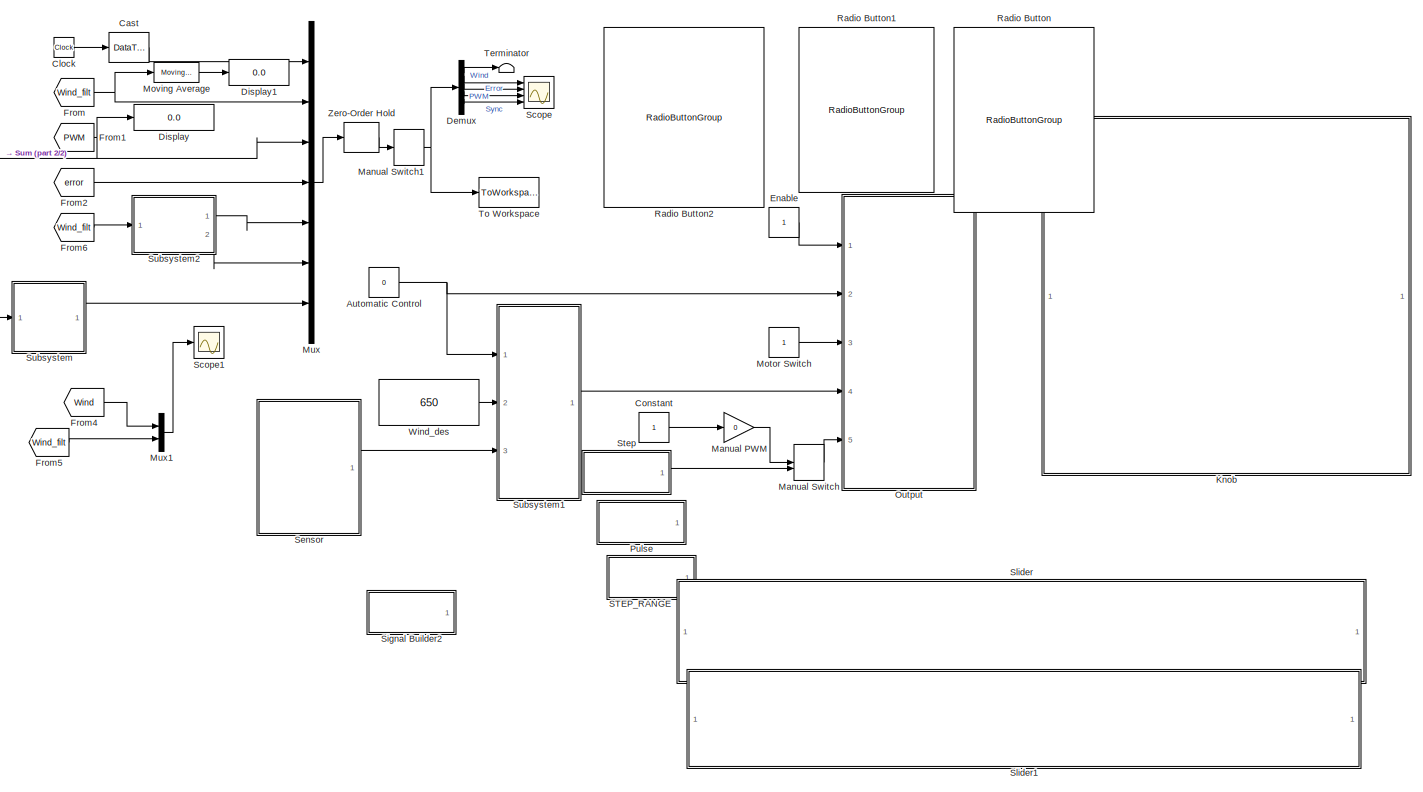
[diagram: root canvas - part 1/2, most of the canvas]
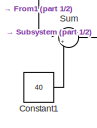
[diagram: root canvas - part 2/2, middle left region]
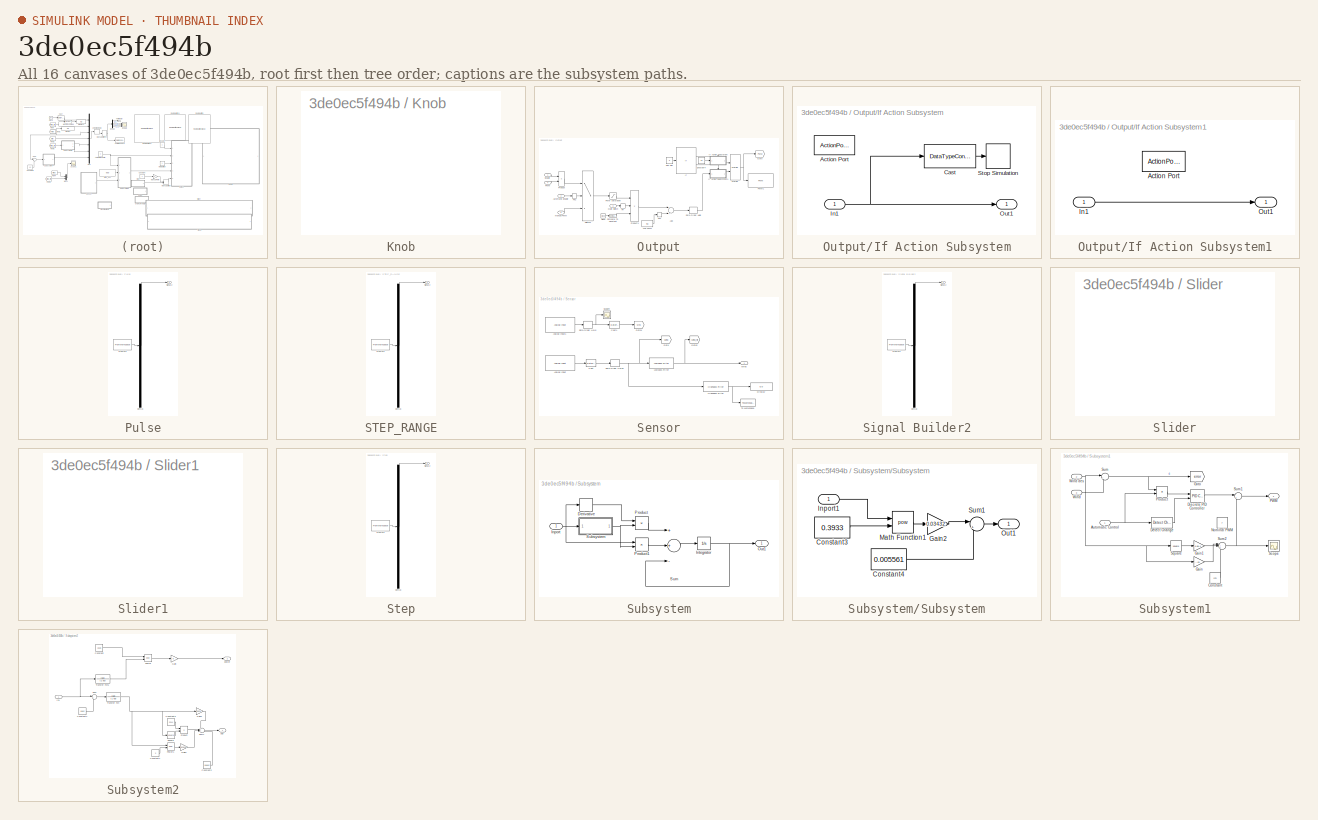
[diagram: thumbnail index - all 16 canvases of the model, root first then tree order]
MODEL slx_3de0ec5f494b
KIND model
CONFIG AbsTol = auto
CONFIG EnableMultiTasking = on
CONFIG FixedStep = 0.01
CONFIG InitFcn = set_param('step_test/Output/Run Sim','Value','1');\nset_param('step_test/Motor Switch','Value','0');\nset_param('step_test/Automatic Control','Value','0');\n%set_param('step_test/Manual PWM','Gain','0');
CONFIG MaxStep = auto
CONFIG MinStep = auto
CONFIG RelTol = 1e-3
CONFIG SampleTimeConstraint = Unconstrained
CONFIG Solver = FixedStepAuto
CONFIG SolverName = FixedStepAuto
CONFIG StartTime = 0.0
CONFIG StopTime = inf
BLOCK [Constant] Automatic Control
  SampleTime = 0.01
  Value = 0
BLOCK [DataTypeConversion] Cast
  OutDataTypeStr = double
  RndMeth = Floor
  SaturateOnIntegerOverflow = off
BLOCK [Clock] Clock
BLOCK [Constant] Constant
  SampleTime = 0.01
BLOCK [Constant] Constant1
  Value = 40
BLOCK [Demux] Demux
  DisplayOption = bar
  Outputs = 6
  Ports = [1, 6]
BLOCK [Display] Display
  Decimation = 1
  Ports = [1]
BLOCK [Display] Display1
  Decimation = 1
  Ports = [1]
BLOCK [Constant] Enable
  SampleTime = 0.01
BLOCK [From] From
  GotoTag = Wind_filt
  TagVisibility = global
BLOCK [From] From1
  GotoTag = PWM
  TagVisibility = global
BLOCK [From] From2
  GotoTag = error
  TagVisibility = global
BLOCK [From] From4
  GotoTag = Wind
  TagVisibility = global
BLOCK [From] From5
  GotoTag = Wind_filt
  TagVisibility = global
BLOCK [From] From6
  GotoTag = Wind_filt
  TagVisibility = global
BLOCK [SubSystem] Knob
  DialogController = hmiCreateDDGDialog
  IsWebBlock = on
  MaskHideContents = on
  Ports = []
  RequestExecContextInheritance = off
BLOCK [Gain] Manual PWM
  Gain = 0
  OutDataTypeStr = Inherit: Inherit via internal rule
  ParamDataTypeStr = Inherit: Inherit via internal rule
  SaturateOnIntegerOverflow = off
BLOCK [ManualSwitch] Manual Switch
BLOCK [ManualSwitch] Manual Switch1
BLOCK [Constant] Motor Switch
  SampleTime = 0.01
BLOCK [Reference] Moving Average  REF=dspstat3/Moving
Average
  Ports = [1, 1]
  SourceBlock = dspstat3/Moving\nAverage
  SourceProductBaseCode = DS
  SourceProductName = DSP System Toolbox
  SourceType = dsp.simulink.MovingAverage
BLOCK [Mux] Mux
  DisplayOption = bar
  Inputs = 7
  Ports = [7, 1]
BLOCK [Mux] Mux1
  DisplayOption = bar
  Inputs = 2
  Ports = [2, 1]
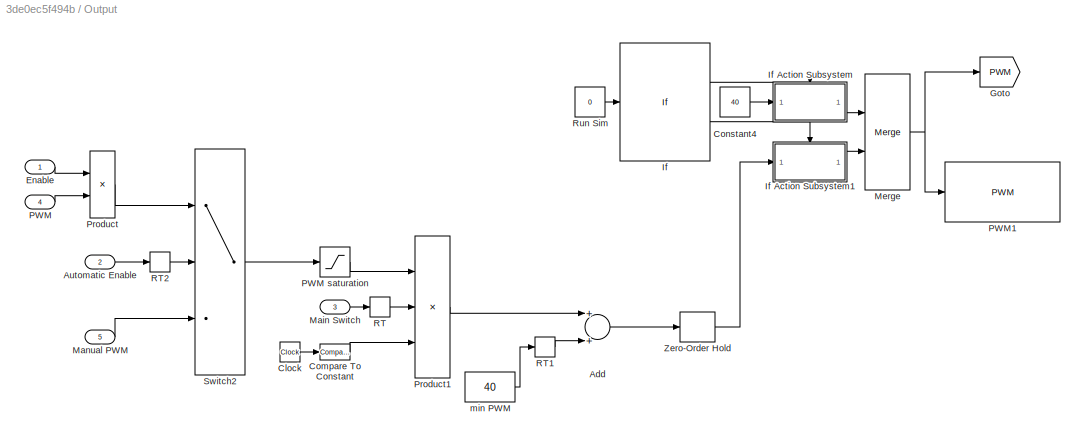
BLOCK [SubSystem] Output
  Ports = [5]
  RequestExecContextInheritance = off
BLOCK [Sum] Output/Add
  InputSameDT = off
  OutDataTypeStr = Inherit: Inherit via internal rule
  Ports = [2, 1]
  SaturateOnIntegerOverflow = off
BLOCK [Inport] Output/Automatic Enable
  IconDisplay = Port number
  Port = 2
BLOCK [Clock] Output/Clock
  Decimation = 2
BLOCK [Reference] Output/Compare To Constant  REF=simulink/Logic and Bit
Operations/Compare
To Constant
  Ports = [1, 1]
  SourceBlock = simulink/Logic and Bit\nOperations/Compare\nTo Constant
  SourceProductBaseCode = SL
  SourceProductName = Simulink
  SourceType = Compare To Constant
BLOCK [Constant] Output/Constant4
  SampleTime = 0.01
  Value = 40
BLOCK [Inport] Output/Enable
  IconDisplay = Port number
BLOCK [Goto] Output/Goto
  GotoTag = PWM
  TagVisibility = global
BLOCK [If] Output/If
  IfExpression = u1 ~= 1
  Ports = [1, 2]
BLOCK [SubSystem] Output/If Action Subsystem
  Ports = [1, 1, 0, 0, 0, 0, 0, 1]
  RequestExecContextInheritance = off
  TreatAsAtomicUnit = on
BLOCK [ActionPort] Output/If Action Subsystem/Action Port
  ActionType = then
BLOCK [DataTypeConversion] Output/If Action Subsystem/Cast
  OutDataTypeStr = boolean
  RndMeth = Floor
  SaturateOnIntegerOverflow = off
BLOCK [Inport] Output/If Action Subsystem/In1
  IconDisplay = Port number
BLOCK [Outport] Output/If Action Subsystem/Out1
  IconDisplay = Port number
BLOCK [Stop] Output/If Action Subsystem/Stop Simulation
BLOCK [SubSystem] Output/If Action Subsystem1
  Ports = [1, 1, 0, 0, 0, 0, 0, 1]
  RequestExecContextInheritance = off
  TreatAsAtomicUnit = on
BLOCK [ActionPort] Output/If Action Subsystem1/Action Port
  ActionType = else
BLOCK [Inport] Output/If Action Subsystem1/In1
  IconDisplay = Port number
BLOCK [Outport] Output/If Action Subsystem1/Out1
  IconDisplay = Port number
BLOCK [Inport] Output/Main Switch
  IconDisplay = Port number
  Port = 3
BLOCK [Inport] Output/Manual PWM
  IconDisplay = Port number
  Port = 5
BLOCK [Merge] Output/Merge
  Ports = [2, 1]
BLOCK [Inport] Output/PWM
  IconDisplay = Port number
  Port = 4
BLOCK [Saturate] Output/PWM saturation
  InputPortMap = u0
  LowerLimit = 0
  Ports = [1, 1]
  UpperLimit = 40
BLOCK [Reference] Output/PWM1  REF=arduinolib/PWM
  Ports = [1]
  SourceBlock = arduinolib/PWM
  SourceProductBaseCode = ARDUINO
  SourceProductName = Simulink Support Package for Arduino Hardware
  SourceType = Arduino PWM
BLOCK [Product] Output/Product
  InputSameDT = off
  OutDataTypeStr = Inherit: Inherit via internal rule
  Ports = [2, 1]
  RndMeth = Floor
  SaturateOnIntegerOverflow = off
BLOCK [Product] Output/Product1
  InputSameDT = off
  Inputs = 3
  OutDataTypeStr = Inherit: Inherit via internal rule
  Ports = [3, 1]
  RndMeth = Floor
  SaturateOnIntegerOverflow = off
BLOCK [RateTransition] Output/RT
  OutPortSampleTime = 0.01
BLOCK [RateTransition] Output/RT1
  OutPortSampleTime = 0.01
BLOCK [RateTransition] Output/RT2
  OutPortSampleTime = 0.01
BLOCK [Constant] Output/Run Sim
  SampleTime = 0.01
  Value = 0
BLOCK [Switch] Output/Switch2
  Criteria = u2 > Threshold
  InputSameDT = off
  SaturateOnIntegerOverflow = off
BLOCK [ZeroOrderHold] Output/Zero-Order Hold
  SampleTime = 0.01
BLOCK [Constant] Output/min PWM
  SampleTime = 0.01
  Value = 40
BLOCK [SubSystem] Pulse
  ClipboardFcn = sigbuilder_block('clipboard');
  CloseFcn = sigbuilder_block('close');
  ContinueFcn = sigbuilder_block('continue');
  CopyFcn = sigbuilder_block('copy');
  DeleteFcn = sigbuilder_block('delete');
  LoadFcn = sigbuilder_block('load');
  MaskHideContents = on
  ModelCloseFcn = sigbuilder_block('modelClose');
  NameChangeFcn = sigbuilder_block('namechange');
  OpenFcn = sigbuilder_block('open',[48.75 0 1391.25 750.75 ]);
  PauseFcn = sigbuilder_block('pause');
  Ports = [0, 1]
  PreSaveFcn = sigbuilder_block('preSave');
  RequestExecContextInheritance = off
  StartFcn = sigbuilder_block('start');
  StopFcn = sigbuilder_block('stop');
  Tag = STV Subsys
BLOCK [Demux] Pulse/Demux
  Outputs = 1
  Ports = [1, 1]
  Tag = STV Demux
BLOCK [FromWorkspace] Pulse/FromWs
  SampleTime = 0
  Tag = STV FromWs
  VariableName = tuvar
  ZeroCross = on
BLOCK [Outport] Pulse/Signal 2
  IconDisplay = Port number
  Tag = STV Outport
BLOCK [RadioButtonGroup] Radio Button
  ButtonGroupName = SIM STATUS
  SelectedLabel = OFF
  WebBlockId = 124
BLOCK [RadioButtonGroup] Radio Button1
  ButtonGroupName = SIM STATUS
  SelectedLabel = OFF
  WebBlockId = 141
BLOCK [RadioButtonGroup] Radio Button2
  ButtonGroupName = SIM STATUS
  SelectedLabel = ON
  WebBlockId = 144
BLOCK [SubSystem] STEP_RANGE
  ClipboardFcn = sigbuilder_block('clipboard');
  CloseFcn = sigbuilder_block('close');
  ContinueFcn = sigbuilder_block('continue');
  CopyFcn = sigbuilder_block('copy');
  DeleteFcn = sigbuilder_block('delete');
  LoadFcn = sigbuilder_block('load');
  MaskHideContents = on
  ModelCloseFcn = sigbuilder_block('modelClose');
  NameChangeFcn = sigbuilder_block('namechange');
  OpenFcn = sigbuilder_block('open',[48.75 0 1391.25 711 ]);
  PauseFcn = sigbuilder_block('pause');
  Ports = [0, 1]
  PreSaveFcn = sigbuilder_block('preSave');
  RequestExecContextInheritance = off
  StartFcn = sigbuilder_block('start');
  StopFcn = sigbuilder_block('stop');
  Tag = STV Subsys
BLOCK [Demux] STEP_RANGE/Demux
  Outputs = 1
  Ports = [1, 1]
  Tag = STV Demux
BLOCK [FromWorkspace] STEP_RANGE/FromWs
  SampleTime = 0
  Tag = STV FromWs
  VariableName = tuvar
  ZeroCross = on
BLOCK [Outport] STEP_RANGE/Signal 2
  IconDisplay = Port number
  Tag = STV Outport
BLOCK [Scope] Scope
  Floating = off
  NumInputPorts = 4
  Ports = [4]
  ScopeSpecificationString = Simulink.scopes.TimeScopeBlockCfg('CurrentConfiguration', extmgr.ConfigurationSet(extmgr.Configuration('Core','General UI',true),extmgr.Configuration('Core','Source UI',true),extmgr.Configuration('Sources','WiredSimulink',true,'DataLoggingVariableName','ScopeData1'),extmgr.Configuration('Visuals','Time Domain',true,'SerializedDisplays',{struct('MinYLimReal','400','MaxYLimReal','750','YLabelReal','...<+3401ch>
BLOCK [Scope] Scope1
  Floating = off
  NumInputPorts = 1
  Ports = [1]
  ScopeSpecificationString = Simulink.scopes.TimeScopeBlockCfg('CurrentConfiguration', extmgr.ConfigurationSet(extmgr.Configuration('Core','General UI',true),extmgr.Configuration('Core','Source UI',true),extmgr.Configuration('Sources','WiredSimulink',true,'DataLoggingVariableName','ScopeData1'),extmgr.Configuration('Visuals','Time Domain',true,'SerializedDisplays',{struct('MinYLimReal','590.625','MaxYLimReal','774.375','YLabe...<+1444ch>
BLOCK [SubSystem] Sensor
  Ports = [0, 1]
  RequestExecContextInheritance = off
BLOCK [Reference] Sensor/Analog Input  REF=arduinolib/Analog Input
  Ports = [0, 1]
  SourceBlock = arduinolib/Analog Input
  SourceProductBaseCode = ARDUINO
  SourceProductName = Simulink Support Package for Arduino Hardware
  SourceType = Arduino Analog Input
BLOCK [Reference] Sensor/Analog Input1  REF=arduinolib/Analog Input
  Ports = [0, 1]
  SourceBlock = arduinolib/Analog Input
  SourceProductBaseCode = ARDUINO
  SourceProductName = Simulink Support Package for Arduino Hardware
  SourceType = Arduino Analog Input
BLOCK [DataTypeConversion] Sensor/Cast
  OutDataTypeStr = double
  RndMeth = Floor
  SaturateOnIntegerOverflow = off
BLOCK [DataTypeConversion] Sensor/Cast1
  OutDataTypeStr = double
  RndMeth = Floor
  SaturateOnIntegerOverflow = off
BLOCK [Display] Sensor/Display
  Commented = on
  Decimation = 1
  Ports = [1]
BLOCK [Goto] Sensor/Goto
  GotoTag = Wind
  TagVisibility = global
BLOCK [Goto] Sensor/Goto1
  GotoTag = sync
  TagVisibility = global
BLOCK [Goto] Sensor/Goto2
  GotoTag = Wind_filt
  TagVisibility = global
BLOCK [Reference] Sensor/Highpass Filter  REF=dspfdesign/Highpass Filter
  Commented = on
  Ports = [1, 1]
  SourceBlock = dspfdesign/Highpass Filter
  SourceProductBaseCode = DS
  SourceProductName = DSP System Toolbox
  SourceType = dsp.HighpassFilter
BLOCK [Reference] Sensor/Lowpass Filter  REF=dspfdesign/Lowpass Filter
  Ports = [1, 1]
  SourceBlock = dspfdesign/Lowpass Filter
  SourceProductBaseCode = DS
  SourceProductName = DSP System Toolbox
  SourceType = dsp.LowpassFilter
BLOCK [Scope] Sensor/Scope4
  Floating = off
  NumInputPorts = 1
  Ports = [1]
  ScopeSpecificationString = Simulink.scopes.TimeScopeBlockCfg('CurrentConfiguration', extmgr.ConfigurationSet(extmgr.Configuration('Core','General UI',true),extmgr.Configuration('Core','Source UI',true),extmgr.Configuration('Sources','WiredSimulink',true,'DataLoggingVariableName','ScopeData4','DataLogging',true),extmgr.Configuration('Visuals','Time Domain',true,'SerializedDisplays',{struct('MinYLimReal','480.00000','MaxYLimR...<+1526ch>
BLOCK [ToWorkspace] Sensor/To Workspace
  Commented = on
  FixptAsFi = on
  MaxDataPoints = inf
  Ports = [1]
  SampleTime = 0.01
  Save2DSignal = 3-D array (concatenate along third dimension)
  VariableName = filtered_Wind
BLOCK [Outport] Sensor/Wind
  IconDisplay = Port number
BLOCK [ZeroOrderHold] Sensor/Zero-Order Hold
  SampleTime = 0.01
BLOCK [ZeroOrderHold] Sensor/Zero-Order Hold1
  SampleTime = 0.01
BLOCK [SubSystem] Signal Builder2
  ClipboardFcn = sigbuilder_block('clipboard');
  CloseFcn = sigbuilder_block('close');
  ContinueFcn = sigbuilder_block('continue');
  CopyFcn = sigbuilder_block('copy');
  DeleteFcn = sigbuilder_block('delete');
  LoadFcn = sigbuilder_block('load');
  MaskHideContents = on
  ModelCloseFcn = sigbuilder_block('modelClose');
  NameChangeFcn = sigbuilder_block('namechange');
  OpenFcn = sigbuilder_block('open',[48.75 0 1391.25 729.75 ]);
  PauseFcn = sigbuilder_block('pause');
  Ports = [0, 1]
  PreSaveFcn = sigbuilder_block('preSave');
  RequestExecContextInheritance = off
  StartFcn = sigbuilder_block('start');
  StopFcn = sigbuilder_block('stop');
  Tag = STV Subsys
BLOCK [Demux] Signal Builder2/Demux
  Outputs = 1
  Ports = [1, 1]
  Tag = STV Demux
BLOCK [FromWorkspace] Signal Builder2/FromWs
  SampleTime = 0
  Tag = STV FromWs
  VariableName = tuvar
  ZeroCross = on
BLOCK [Outport] Signal Builder2/Signal 2
  IconDisplay = Port number
  Tag = STV Outport
BLOCK [SubSystem] Slider
  DialogController = hmiCreateDDGDialog
  IsWebBlock = on
  MaskHideContents = on
  Ports = []
  RequestExecContextInheritance = off
BLOCK [SubSystem] Slider1
  DialogController = hmiCreateDDGDialog
  IsWebBlock = on
  MaskHideContents = on
  Ports = []
  RequestExecContextInheritance = off
BLOCK [SubSystem] Step
  ClipboardFcn = sigbuilder_block('clipboard');
  CloseFcn = sigbuilder_block('close');
  ContinueFcn = sigbuilder_block('continue');
  CopyFcn = sigbuilder_block('copy');
  DeleteFcn = sigbuilder_block('delete');
  LoadFcn = sigbuilder_block('load');
  MaskHideContents = on
  ModelCloseFcn = sigbuilder_block('modelClose');
  NameChangeFcn = sigbuilder_block('namechange');
  OpenFcn = sigbuilder_block('open',[48.75 0 1391.25 750.75 ]);
  PauseFcn = sigbuilder_block('pause');
  Ports = [0, 1]
  PreSaveFcn = sigbuilder_block('preSave');
  RequestExecContextInheritance = off
  StartFcn = sigbuilder_block('start');
  StopFcn = sigbuilder_block('stop');
  Tag = STV Subsys
BLOCK [Demux] Step/Demux
  Outputs = 1
  Ports = [1, 1]
  Tag = STV Demux
BLOCK [FromWorkspace] Step/FromWs
  SampleTime = 0
  Tag = STV FromWs
  VariableName = tuvar
  ZeroCross = on
BLOCK [Outport] Step/Signal 2
  IconDisplay = Port number
  Tag = STV Outport
BLOCK [SubSystem] Subsystem
  Ports = [1, 1]
  RequestExecContextInheritance = off
BLOCK [Derivative] Subsystem/Derivative
BLOCK [Inport] Subsystem/Inport
  IconDisplay = Port number
BLOCK [Integrator] Subsystem/Integrator
  Ports = [1, 1]
BLOCK [Outport] Subsystem/Out1
  IconDisplay = Port number
BLOCK [Product] Subsystem/Product
  InputSameDT = off
  OutDataTypeStr = Inherit: Inherit via internal rule
  Ports = [2, 1]
  RndMeth = Floor
  SaturateOnIntegerOverflow = off
BLOCK [Product] Subsystem/Product1
  InputSameDT = off
  OutDataTypeStr = Inherit: Inherit via internal rule
  Ports = [2, 1]
  RndMeth = Floor
  SaturateOnIntegerOverflow = off
BLOCK [SubSystem] Subsystem/Subsystem
  Ports = [1, 1]
  RequestExecContextInheritance = off
BLOCK [Constant] Subsystem/Subsystem/Constant3
  Value = 0.3933
BLOCK [Constant] Subsystem/Subsystem/Constant4
  Value = 0.005561
BLOCK [Gain] Subsystem/Subsystem/Gain2
  Gain = 0.03432
  OutDataTypeStr = Inherit: Inherit via internal rule
  ParamDataTypeStr = Inherit: Inherit via internal rule
  SaturateOnIntegerOverflow = off
BLOCK [Inport] Subsystem/Subsystem/Inport1
  IconDisplay = Port number
BLOCK [Math] Subsystem/Subsystem/Math Function1
  Operator = pow
  Ports = [2, 1]
BLOCK [Outport] Subsystem/Subsystem/Out1
  IconDisplay = Port number
BLOCK [Sum] Subsystem/Subsystem/Sum1
  IconShape = round
  InputSameDT = off
  Inputs = |++
  OutDataTypeStr = Inherit: Inherit via internal rule
  Ports = [2, 1]
  SaturateOnIntegerOverflow = off
BLOCK [Sum] Subsystem/Sum
  InputSameDT = off
  Inputs = ++-
  OutDataTypeStr = Inherit: Inherit via internal rule
  Ports = [3, 1]
  SaturateOnIntegerOverflow = off
BLOCK [SubSystem] Subsystem1
  Ports = [3, 1]
  RequestExecContextInheritance = off
BLOCK [Inport] Subsystem1/Automatic Control
  IconDisplay = Port number
BLOCK [Constant] Subsystem1/Constant
  Value = 170
BLOCK [Reference] Subsystem1/Detect Change  REF=simulink/Logic and Bit
Operations/Detect
Change
  Ports = [1, 1]
  SourceBlock = simulink/Logic and Bit\nOperations/Detect\nChange
  SourceProductBaseCode = SL
  SourceProductName = Simulink
  SourceType = Detect Change
BLOCK [Reference] Subsystem1/Discrete PID Controller  REF=simulink/Continuous/PID Controller
  Ports = [2, 1]
  SourceBlock = simulink/Continuous/PID Controller
  SourceProductBaseCode = SL
  SourceProductName = Simulink
  SourceType = PID 1dof
BLOCK [Gain] Subsystem1/Gain
  Gain = -.61
  OutDataTypeStr = Inherit: Inherit via internal rule
  ParamDataTypeStr = Inherit: Inherit via internal rule
  SaturateOnIntegerOverflow = off
BLOCK [Gain] Subsystem1/Gain1
  Gain = 5.6e-4
  OutDataTypeStr = Inherit: Inherit via internal rule
  ParamDataTypeStr = Inherit: Inherit via internal rule
  SaturateOnIntegerOverflow = off
BLOCK [Goto] Subsystem1/Goto
  GotoTag = error
  TagVisibility = global
BLOCK [Constant] Subsystem1/Nominal PWM
  Commented = on
  SampleTime = 0.01
  Value = 7
BLOCK [Outport] Subsystem1/PWM
  IconDisplay = Port number
BLOCK [Product] Subsystem1/Product
  InputSameDT = off
  OutDataTypeStr = Inherit: Inherit via internal rule
  Ports = [2, 1]
  RndMeth = Floor
  SaturateOnIntegerOverflow = off
BLOCK [Scope] Subsystem1/Scope
  Floating = off
  NumInputPorts = 1
  Ports = [1]
  ScopeSpecificationString = Simulink.scopes.TimeScopeBlockCfg('CurrentConfiguration', extmgr.ConfigurationSet(extmgr.Configuration('Core','General UI',true),extmgr.Configuration('Core','Source UI',true),extmgr.Configuration('Sources','WiredSimulink',true,'DataLoggingVariableName','ScopeData1'),extmgr.Configuration('Visuals','Time Domain',true,'SerializedDisplays',{struct('MinYLimReal','10.06778','MaxYLimReal','10.39002','YLa...<+1398ch>
BLOCK [Math] Subsystem1/Square
  Operator = square
  Ports = [1, 1]
BLOCK [Sum] Subsystem1/Sum
  IconShape = round
  InputSameDT = off
  Inputs = |+-
  OutDataTypeStr = Inherit: Inherit via internal rule
  Ports = [2, 1]
  SaturateOnIntegerOverflow = off
BLOCK [Sum] Subsystem1/Sum1
  IconShape = round
  InputSameDT = off
  Inputs = |++
  OutDataTypeStr = Inherit: Inherit via internal rule
  Ports = [2, 1]
  SaturateOnIntegerOverflow = off
BLOCK [Sum] Subsystem1/Sum2
  IconShape = round
  InputSameDT = off
  Inputs = |+++
  OutDataTypeStr = Inherit: Inherit via internal rule
  Ports = [3, 1]
  SaturateOnIntegerOverflow = off
BLOCK [Inport] Subsystem1/Wind
  IconDisplay = Port number
  Port = 3
BLOCK [Inport] Subsystem1/Wind des
  IconDisplay = Port number
  Port = 2
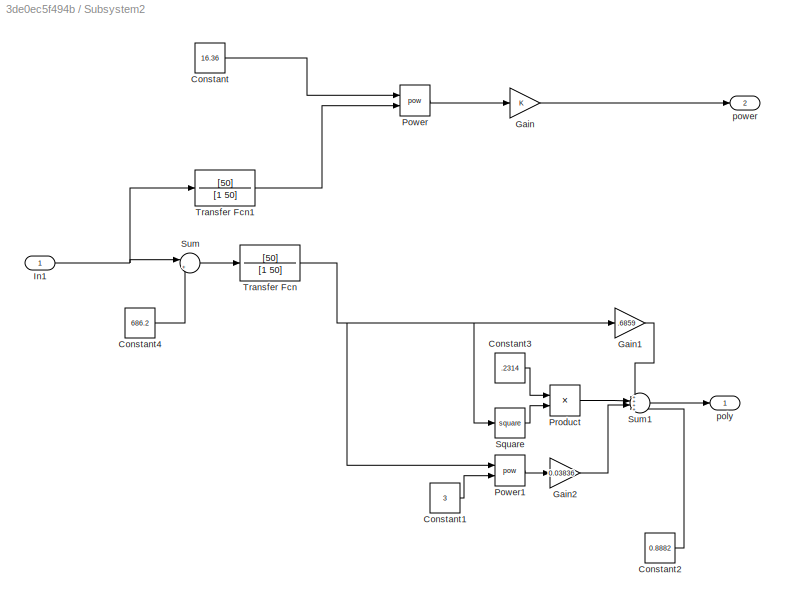
BLOCK [SubSystem] Subsystem2
  Ports = [1, 2]
  RequestExecContextInheritance = off
BLOCK [Constant] Subsystem2/Constant
  Value = 16.36
BLOCK [Constant] Subsystem2/Constant1
  Value = 3
BLOCK [Constant] Subsystem2/Constant2
  Value = 0.8882
BLOCK [Constant] Subsystem2/Constant3
  Value = .2314
BLOCK [Constant] Subsystem2/Constant4
  Value = 686.2
BLOCK [Gain] Subsystem2/Gain
  OutDataTypeStr = Inherit: Inherit via internal rule
  ParamDataTypeStr = Inherit: Inherit via internal rule
  SaturateOnIntegerOverflow = off
BLOCK [Gain] Subsystem2/Gain1
  Gain = .6859
  OutDataTypeStr = Inherit: Inherit via internal rule
  ParamDataTypeStr = Inherit: Inherit via internal rule
  SaturateOnIntegerOverflow = off
BLOCK [Gain] Subsystem2/Gain2
  Gain = 0.03836
  OutDataTypeStr = Inherit: Inherit via internal rule
  ParamDataTypeStr = Inherit: Inherit via internal rule
  SaturateOnIntegerOverflow = off
BLOCK [Inport] Subsystem2/In1
  IconDisplay = Port number
BLOCK [Math] Subsystem2/Power
  Operator = pow
  Ports = [2, 1]
BLOCK [Math] Subsystem2/Power1
  Operator = pow
  Ports = [2, 1]
BLOCK [Product] Subsystem2/Product
  InputSameDT = off
  OutDataTypeStr = Inherit: Inherit via internal rule
  Ports = [2, 1]
  RndMeth = Floor
  SaturateOnIntegerOverflow = off
BLOCK [Math] Subsystem2/Square
  Operator = square
  Ports = [1, 1]
BLOCK [Sum] Subsystem2/Sum
  IconShape = round
  InputSameDT = off
  Inputs = |+-
  OutDataTypeStr = Inherit: Inherit via internal rule
  Ports = [2, 1]
  SaturateOnIntegerOverflow = off
BLOCK [Sum] Subsystem2/Sum1
  IconShape = round
  InputSameDT = off
  Inputs = ++++
  OutDataTypeStr = Inherit: Inherit via internal rule
  Ports = [4, 1]
  SaturateOnIntegerOverflow = off
BLOCK [TransferFcn] Subsystem2/Transfer Fcn
  Denominator = [1 50]
  Numerator = [50]
BLOCK [TransferFcn] Subsystem2/Transfer Fcn1
  Denominator = [1 50]
  Numerator = [50]
BLOCK [Outport] Subsystem2/poly
  IconDisplay = Port number
BLOCK [Outport] Subsystem2/power 
  IconDisplay = Port number
  Port = 2
BLOCK [Sum] Sum
  IconShape = round
  InputSameDT = off
  Inputs = |+-
  OutDataTypeStr = Inherit: Inherit via internal rule
  Ports = [2, 1]
  SaturateOnIntegerOverflow = off
BLOCK [Terminator] Terminator
BLOCK [ToWorkspace] To Workspace
  FixptAsFi = on
  MaxDataPoints = inf
  Ports = [1]
  SampleTime = -1
  Save2DSignal = 2-D array (concatenate along first dimension)
  VariableName = Data
BLOCK [Constant] Wind_des
  SampleTime = 0.01
  Value = 650
BLOCK [ZeroOrderHold] Zero-Order Hold
  SampleTime = 0.01
NET Automatic Control:1 -> Output:2, Subsystem1:1
LINE Cast:1 -> Mux:1
LINE Clock:1 -> Cast:1
LINE Constant1:1 -> Sum:2
LINE Constant:1 -> Manual PWM:1
LINE Demux:1 -> Terminator:1
LINE Demux:2 -> Scope:1
LINE Demux:3 -> Scope:2
LINE Demux:4 -> Scope:3
LINE Demux:5 -> Scope:4
LINE Enable:1 -> Output:1
NET From1:1 -> Display:1, Mux:3, Sum:1
LINE From2:1 -> Mux:4
LINE From4:1 -> Mux1:1
LINE From5:1 -> Mux1:2
LINE From6:1 -> Subsystem2:1
NET From:1 -> Moving Average:1, Mux:2
LINE Manual PWM:1 -> Manual Switch:1
NET Manual Switch1:1 -> Demux:1, To Workspace:1
LINE Manual Switch:1 -> Output:5
LINE Motor Switch:1 -> Output:3
LINE Moving Average:1 -> Display1:1
LINE Mux1:1 -> Scope1:1
LINE Mux:1 -> Zero-Order Hold:1
LINE Output/Add:1 -> Output/Zero-Order Hold:1
LINE Output/Automatic Enable:1 -> Output/RT2:1
LINE Output/Clock:1 -> Output/Compare To Constant:1
LINE Output/Compare To Constant:1 -> Output/Product1:3
LINE Output/Constant4:1 -> Output/If Action Subsystem:1
LINE Output/Enable:1 -> Output/Product:1
LINE Output/If Action Subsystem/Cast:1 -> Output/If Action Subsystem/Stop Simulation:1
NET Output/If Action Subsystem/In1:1 -> Output/If Action Subsystem/Cast:1, Output/If Action Subsystem/Out1:1
LINE Output/If Action Subsystem1/In1:1 -> Output/If Action Subsystem1/Out1:1
LINE Output/If Action Subsystem1:1 -> Output/Merge:2
LINE Output/If Action Subsystem:1 -> Output/Merge:1
LINE Output/If:1 -> Output/If Action Subsystem:ifaction
LINE Output/If:2 -> Output/If Action Subsystem1:ifaction
LINE Output/Main Switch:1 -> Output/RT:1
LINE Output/Manual PWM:1 -> Output/Switch2:3
NET Output/Merge:1 -> Output/Goto:1, Output/PWM1:1
LINE Output/PWM saturation:1 -> Output/Product1:1
LINE Output/PWM:1 -> Output/Product:2
LINE Output/Product1:1 -> Output/Add:1
LINE Output/Product:1 -> Output/Switch2:1
LINE Output/RT1:1 -> Output/Add:2
LINE Output/RT2:1 -> Output/Switch2:2
LINE Output/RT:1 -> Output/Product1:2
LINE Output/Run Sim:1 -> Output/If:1
LINE Output/Switch2:1 -> Output/PWM saturation:1
LINE Output/Zero-Order Hold:1 -> Output/If Action Subsystem1:1
LINE Output/min PWM:1 -> Output/RT1:1
LINE Sensor/Analog Input1:1 -> Sensor/Zero-Order Hold:1
LINE Sensor/Analog Input:1 -> Sensor/Cast:1
LINE Sensor/Cast1:1 -> Sensor/Goto1:1
LINE Sensor/Cast:1 -> Sensor/Zero-Order Hold1:1
NET Sensor/Highpass Filter:1 -> Sensor/Display:1, Sensor/To Workspace:1
NET Sensor/Lowpass Filter:1 -> Sensor/Goto2:1, Sensor/Wind:1
NET Sensor/Zero-Order Hold1:1 -> Sensor/Goto:1, Sensor/Highpass Filter:1, Sensor/Lowpass Filter:1
NET Sensor/Zero-Order Hold:1 -> Sensor/Cast1:1, Sensor/Scope4:1
LINE Sensor:1 -> Subsystem1:3
LINE Step:1 -> Manual Switch:2
LINE Subsystem/Derivative:1 -> Subsystem/Product:1
NET Subsystem/Inport:1 -> Subsystem/Derivative:1, Subsystem/Product1:1, Subsystem/Subsystem:1
NET Subsystem/Integrator:1 -> Subsystem/Out1:1, Subsystem/Sum:3
LINE Subsystem/Product1:1 -> Subsystem/Sum:2
LINE Subsystem/Product:1 -> Subsystem/Sum:1
LINE Subsystem/Subsystem/Constant3:1 -> Subsystem/Subsystem/Math Function1:2
LINE Subsystem/Subsystem/Constant4:1 -> Subsystem/Subsystem/Sum1:2
LINE Subsystem/Subsystem/Gain2:1 -> Subsystem/Subsystem/Sum1:1
LINE Subsystem/Subsystem/Inport1:1 -> Subsystem/Subsystem/Math Function1:1
LINE Subsystem/Subsystem/Math Function1:1 -> Subsystem/Subsystem/Gain2:1
LINE Subsystem/Subsystem/Sum1:1 -> Subsystem/Subsystem/Out1:1
NET Subsystem/Subsystem:1 -> Subsystem/Product1:2, Subsystem/Product:2
LINE Subsystem/Sum:1 -> Subsystem/Integrator:1
NET Subsystem1/Automatic Control:1 -> Subsystem1/Detect Change:1, Subsystem1/Product:2
LINE Subsystem1/Constant:1 -> Subsystem1/Sum2:3
LINE Subsystem1/Detect Change:1 -> Subsystem1/Discrete PID Controller:2
LINE Subsystem1/Discrete PID Controller:1 -> Subsystem1/Sum1:1
LINE Subsystem1/Gain1:1 -> Subsystem1/Sum2:1
LINE Subsystem1/Gain:1 -> Subsystem1/Sum2:2
LINE Subsystem1/Product:1 -> Subsystem1/Discrete PID Controller:1
LINE Subsystem1/Square:1 -> Subsystem1/Gain1:1
LINE Subsystem1/Sum1:1 -> Subsystem1/PWM:1
NET Subsystem1/Sum2:1 -> Subsystem1/Scope:1, Subsystem1/Sum1:2
NET Subsystem1/Sum:1 -> Subsystem1/Goto:1, Subsystem1/Product:1
NET Subsystem1/Wind des:1 -> Subsystem1/Gain:1, Subsystem1/Square:1, Subsystem1/Sum:1
LINE Subsystem1/Wind:1 -> Subsystem1/Sum:2
LINE Subsystem1:1 -> Output:4
LINE Subsystem2/Constant1:1 -> Subsystem2/Power1:2
LINE Subsystem2/Constant2:1 -> Subsystem2/Sum1:4
LINE Subsystem2/Constant3:1 -> Subsystem2/Product:1
LINE Subsystem2/Constant4:1 -> Subsystem2/Sum:2
LINE Subsystem2/Constant:1 -> Subsystem2/Power:1
LINE Subsystem2/Gain1:1 -> Subsystem2/Sum1:1
LINE Subsystem2/Gain2:1 -> Subsystem2/Sum1:3
LINE Subsystem2/Gain:1 -> Subsystem2/power :1
NET Subsystem2/In1:1 -> Subsystem2/Sum:1, Subsystem2/Transfer Fcn1:1
LINE Subsystem2/Power1:1 -> Subsystem2/Gain2:1
LINE Subsystem2/Power:1 -> Subsystem2/Gain:1
LINE Subsystem2/Product:1 -> Subsystem2/Sum1:2
LINE Subsystem2/Square:1 -> Subsystem2/Product:2
LINE Subsystem2/Sum1:1 -> Subsystem2/poly:1
LINE Subsystem2/Sum:1 -> Subsystem2/Transfer Fcn:1
LINE Subsystem2/Transfer Fcn1:1 -> Subsystem2/Power:2
NET Subsystem2/Transfer Fcn:1 -> Subsystem2/Gain1:1, Subsystem2/Power1:1, Subsystem2/Square:1
LINE Subsystem2:1 -> Mux:5
LINE Subsystem2:2 -> Mux:6
LINE Subsystem:1 -> Mux:7
LINE Sum:1 -> Subsystem:1
LINE Wind_des:1 -> Subsystem1:2
LINE Zero-Order Hold:1 -> Manual Switch1:1
note: NET lines group one-source signal fan-out (src -> all destinations, sorted); 1:1 wires keep LINE
